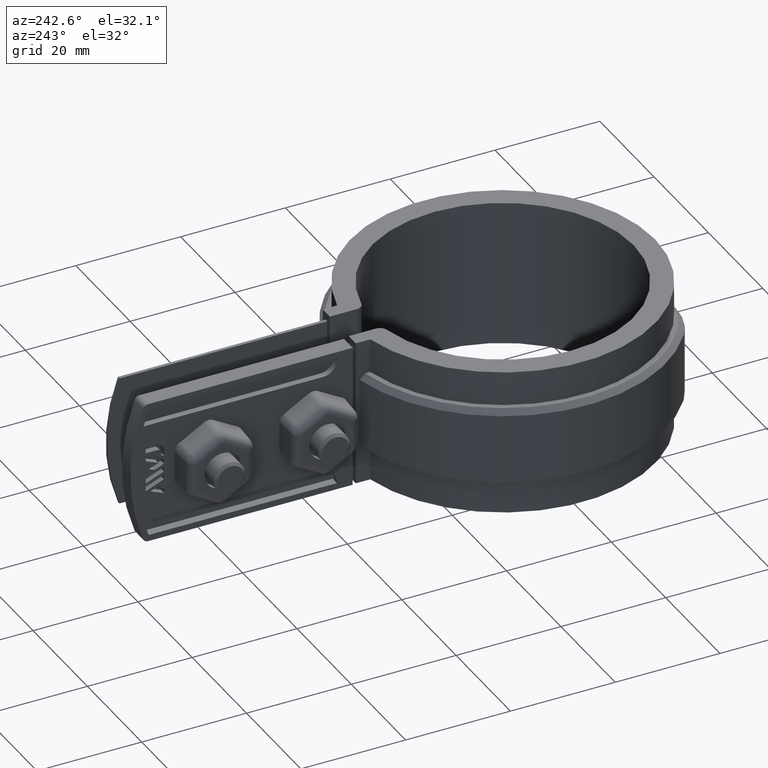
[diagram: clean part render]
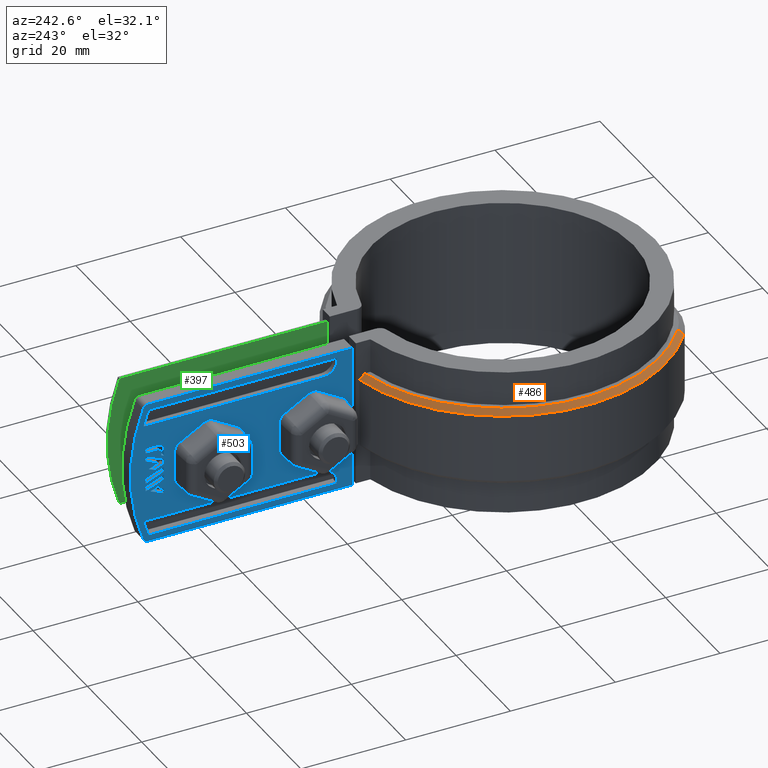
[diagram: same view with three faces highlighted in distinct colors, each labeled with its STEP entity id]
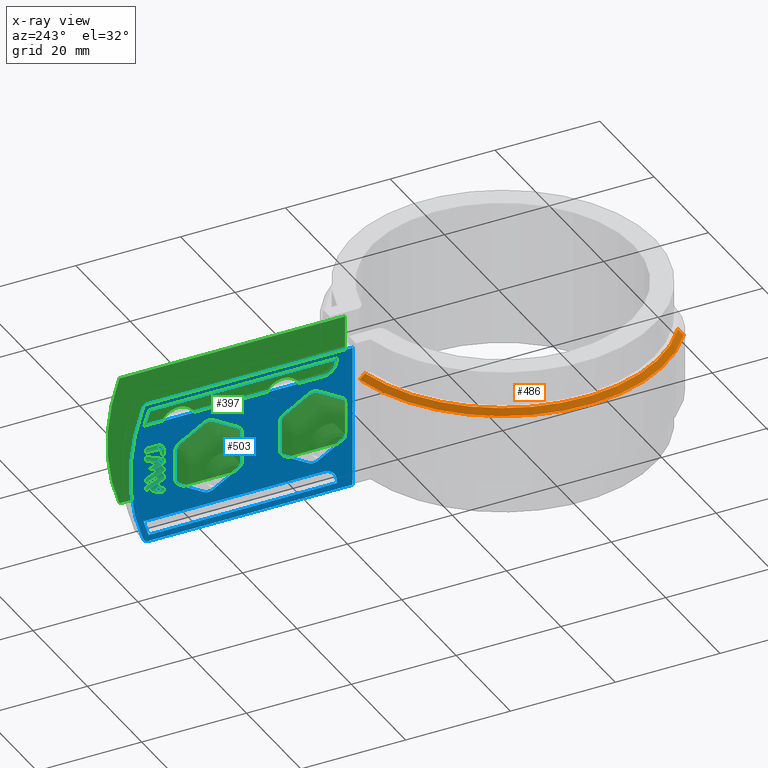
[diagram: x-ray of the same camera — body ghosted, the three highlighted faces saturated]
A machine part, auxiliary view with three faces highlighted in distinct colors.
The next image is the same camera in x-ray (body ghosted, the three faces saturated) — at least one of them is partly hidden behind the body in this view.
Their STEP definitions:

[orange] entity #486 — the highlighted conical surface has half-angle 45 deg.
#486 = ADVANCED_FACE( '', ( #984 ), #985, .T. );
#984 = FACE_OUTER_BOUND( '', #2330, .T. );
#985 = CONICAL_SURFACE( '', #2331, 30.0950000000000, 0.785398163397447 );
#2330 = EDGE_LOOP( '', ( #5050, #5051, #5052, #5053 ) );
#2331 = AXIS2_PLACEMENT_3D( '', #5054, #5055, #5056 );
#5050 = ORIENTED_EDGE( '', *, *, #7542, .F. );
#5051 = ORIENTED_EDGE( '', *, *, #7563, .F. );
#5052 = ORIENTED_EDGE( '', *, *, #7588, .F. );
#5053 = ORIENTED_EDGE( '', *, *, #7568, .F. );
#5054 = CARTESIAN_POINT( '', ( 0.000000000000000, 0.000000000000000, -5.00000000000000 ) );
#5055 = DIRECTION( '', ( 0.000000000000000, 0.000000000000000, -1.00000000000000 ) );
#5056 = DIRECTION( '', ( -1.00000000000000, 0.000000000000000, 0.000000000000000 ) );
#7542 = EDGE_CURVE( '', #8761, #8763, #8764, .T. );
#7563 = EDGE_CURVE( '', #8797, #8761, #8799, .T. );
#7568 = EDGE_CURVE( '', #8763, #8805, #8806, .F. );
#7588 = EDGE_CURVE( '', #8805, #8797, #8832, .T. );
#8761 = VERTEX_POINT( '', #12291 );
#8763 = VERTEX_POINT( '', #12294 );
#8764 = B_SPLINE_CURVE_WITH_KNOTS( '', 3, ( #12295, #12296, #12297, #12298 ), .UNSPECIFIED., .F., .F., ( 4, 4 ), ( 0.000000000000000, 0.00142877906291672 ), .UNSPECIFIED. );
#8797 = VERTEX_POINT( '', #12350 );
#8799 = CIRCLE( '', #12353, 31.0950000000000 );
#8805 = VERTEX_POINT( '', #12359 );
#8806 = CIRCLE( '', #12360, 30.0950000000000 );
#8832 = LINE( '', #12396, #12397 );
#12291 = CARTESIAN_POINT( '', ( -6.10000000000002, 30.4908023016778, -6.00000000000000 ) );
#12294 = CARTESIAN_POINT( '', ( -6.10000000000002, 29.4703075145137, -5.00000000000000 ) );
#12295 = CARTESIAN_POINT( '', ( -6.10000000000002, 30.4908023016778, -6.00000000000000 ) );
#12296 = CARTESIAN_POINT( '', ( -6.10000000000002, 30.1507483085061, -5.66655349484826 ) );
#12297 = CARTESIAN_POINT( '', ( -6.10000000000003, 29.8105871020805, -5.33321628464889 ) );
#12298 = CARTESIAN_POINT( '', ( -6.10000000000003, 29.4703075145137, -5.00000000000000 ) );
#12350 = CARTESIAN_POINT( '', ( -18.6948570380802, -24.8475621606173, -6.00000000000000 ) );
#12353 = AXIS2_PLACEMENT_3D( '', #14271, #14272, #14273 );
#12359 = CARTESIAN_POINT( '', ( -18.0936395742410, -24.0484767076308, -5.00000000000000 ) );
#12360 = AXIS2_PLACEMENT_3D( '', #14286, #14287, #14288 );
#12396 = CARTESIAN_POINT( '', ( -18.0936395742410, -24.0484767076308, -5.00000000000000 ) );
#12397 = VECTOR( '', #14326, 1000.00000000000 );
#14271 = CARTESIAN_POINT( '', ( 0.000000000000000, 0.000000000000000, -6.00000000000000 ) );
#14272 = DIRECTION( '', ( 0.000000000000000, 0.000000000000000, -1.00000000000000 ) );
#14273 = DIRECTION( '', ( -1.00000000000000, 0.000000000000000, 0.000000000000000 ) );
#14286 = CARTESIAN_POINT( '', ( 0.000000000000000, 0.000000000000000, -5.00000000000000 ) );
#14287 = DIRECTION( '', ( 0.000000000000000, 0.000000000000000, -1.00000000000000 ) );
#14288 = DIRECTION( '', ( -1.00000000000000, 0.000000000000000, 0.000000000000000 ) );
#14326 = DIRECTION( '', ( -0.425124945648482, -0.565038742554326, -0.707106781186548 ) );

[blue] entity #503 — the highlighted planar face has unit normal (-1, 0, -0).
#503 = ADVANCED_FACE( '', ( #1018, #1019, #1020, #1021, #1022, #1023, #1024, #1025, #1026, #1027 ), #1028, .T. );
#1018 = FACE_BOUND( '', #2418, .T. );
#1019 = FACE_BOUND( '', #2419, .T. );
#1020 = FACE_BOUND( '', #2420, .T. );
#1021 = FACE_BOUND( '', #2421, .T. );
#1022 = FACE_BOUND( '', #2422, .T. );
#1023 = FACE_OUTER_BOUND( '', #2423, .T. );
#1024 = FACE_BOUND( '', #2424, .T. );
#1025 = FACE_BOUND( '', #2425, .T. );
#1026 = FACE_BOUND( '', #2426, .T. );
#1027 = FACE_BOUND( '', #2427, .T. );
#1028 = PLANE( '', #2428 );
#2418 = EDGE_LOOP( '', ( #5436, #5437, #5438, #5439, #5440 ) );
#2419 = EDGE_LOOP( '', ( #5441, #5442, #5443, #5444 ) );
#2420 = EDGE_LOOP( '', ( #5445, #5446, #5447, #5448, #5449 ) );
#2421 = EDGE_LOOP( '', ( #5450, #5451, #5452, #5453, #5454, #5455, #5456, #5457, #5458, #5459, #5460, #5461 ) );
#2422 = EDGE_LOOP( '', ( #5462, #5463, #5464, #5465, #5466, #5467, #5468, #5469, #5470, #5471, #5472, #5473 ) );
#2423 = EDGE_LOOP( '', ( #5474, #5475, #5476, #5477, #5478, #5479 ) );
#2424 = EDGE_LOOP( '', ( #5480, #5481, #5482, #5483, #5484 ) );
#2425 = EDGE_LOOP( '', ( #5485, #5486, #5487, #5488, #5489, #5490, #5491, #5492, #5493, #5494, #5495, #5496, #5497, #5498, #5499, #5500, #5501, #5502, #5503, #5504, #5505, #5506, #5507, #5508, #5509, #5510, #5511, #5512, #5513, #5514, #5515, #5516, #5517, #5518, #5519, #5520, #5521, #5522, #5523, #5524 ) );
#2426 = EDGE_LOOP( '', ( #5525, #5526, #5527, #5528, #5529, #5530, #5531 ) );
#2427 = EDGE_LOOP( '', ( #5532, #5533, #5534, #5535 ) );
#2428 = AXIS2_PLACEMENT_3D( '', #5536, #5537, #5538 );
#5436 = ORIENTED_EDGE( '', *, *, #7596, .T. );
#5437 = ORIENTED_EDGE( '', *, *, #7597, .T. );
#5438 = ORIENTED_EDGE( '', *, *, #7598, .T. );
#5439 = ORIENTED_EDGE( '', *, *, #7599, .T. );
#5440 = ORIENTED_EDGE( '', *, *, #7600, .T. );
#5441 = ORIENTED_EDGE( '', *, *, #7601, .T. );
#5442 = ORIENTED_EDGE( '', *, *, #7602, .T. );
#5443 = ORIENTED_EDGE( '', *, *, #7603, .T. );
#5444 = ORIENTED_EDGE( '', *, *, #7604, .T. );
#5445 = ORIENTED_EDGE( '', *, *, #7605, .T. );
#5446 = ORIENTED_EDGE( '', *, *, #7606, .F. );
#5447 = ORIENTED_EDGE( '', *, *, #7607, .T. );
#5448 = ORIENTED_EDGE( '', *, *, #7608, .T. );
#5449 = ORIENTED_EDGE( '', *, *, #7609, .T. );
#5450 = ORIENTED_EDGE( '', *, *, #7610, .F. );
#5451 = ORIENTED_EDGE( '', *, *, #7611, .F. );
#5452 = ORIENTED_EDGE( '', *, *, #7612, .F. );
#5453 = ORIENTED_EDGE( '', *, *, #7613, .F. );
#5454 = ORIENTED_EDGE( '', *, *, #7614, .F. );
#5455 = ORIENTED_EDGE( '', *, *, #7615, .F. );
#5456 = ORIENTED_EDGE( '', *, *, #7616, .F. );
#5457 = ORIENTED_EDGE( '', *, *, #7617, .F. );
#5458 = ORIENTED_EDGE( '', *, *, #7618, .F. );
#5459 = ORIENTED_EDGE( '', *, *, #7619, .F. );
#5460 = ORIENTED_EDGE( '', *, *, #7620, .F. );
#5461 = ORIENTED_EDGE( '', *, *, #7621, .F. );
#5462 = ORIENTED_EDGE( '', *, *, #7622, .F. );
#5463 = ORIENTED_EDGE( '', *, *, #7623, .F. );
#5464 = ORIENTED_EDGE( '', *, *, #7624, .F. );
#5465 = ORIENTED_EDGE( '', *, *, #7625, .F. );
#5466 = ORIENTED_EDGE( '', *, *, #7626, .F. );
#5467 = ORIENTED_EDGE( '', *, *, #7627, .F. );
#5468 = ORIENTED_EDGE( '', *, *, #7628, .F. );
#5469 = ORIENTED_EDGE( '', *, *, #7629, .F. );
#5470 = ORIENTED_EDGE( '', *, *, #7630, .F. );
#5471 = ORIENTED_EDGE( '', *, *, #7631, .F. );
#5472 = ORIENTED_EDGE( '', *, *, #7632, .F. );
#5473 = ORIENTED_EDGE( '', *, *, #7633, .F. );
#5474 = ORIENTED_EDGE( '', *, *, #7634, .T. );
#5475 = ORIENTED_EDGE( '', *, *, #7635, .T. );
#5476 = ORIENTED_EDGE( '', *, *, #7636, .T. );
#5477 = ORIENTED_EDGE( '', *, *, #7637, .T. );
#5478 = ORIENTED_EDGE( '', *, *, #7638, .T. );
#5479 = ORIENTED_EDGE( '', *, *, #7639, .T. );
#5480 = ORIENTED_EDGE( '', *, *, #7640, .T. );
#5481 = ORIENTED_EDGE( '', *, *, #7641, .T. );
#5482 = ORIENTED_EDGE( '', *, *, #7642, .T. );
#5483 = ORIENTED_EDGE( '', *, *, #7643, .T. );
#5484 = ORIENTED_EDGE( '', *, *, #7644, .F. );
#5485 = ORIENTED_EDGE( '', *, *, #7645, .T. );
#5486 = ORIENTED_EDGE( '', *, *, #7646, .T. );
#5487 = ORIENTED_EDGE( '', *, *, #7647, .T. );
#5488 = ORIENTED_EDGE( '', *, *, #7648, .T. );
#5489 = ORIENTED_EDGE( '', *, *, #7649, .T. );
#5490 = ORIENTED_EDGE( '', *, *, #7650, .T. );
#5491 = ORIENTED_EDGE( '', *, *, #7651, .T. );
#5492 = ORIENTED_EDGE( '', *, *, #7652, .T. );
#5493 = ORIENTED_EDGE( '', *, *, #7653, .T. );
#5494 = ORIENTED_EDGE( '', *, *, #7654, .T. );
#5495 = ORIENTED_EDGE( '', *, *, #7655, .T. );
#5496 = ORIENTED_EDGE( '', *, *, #7656, .T. );
#5497 = ORIENTED_EDGE( '', *, *, #7657, .T. );
#5498 = ORIENTED_EDGE( '', *, *, #7658, .T. );
#5499 = ORIENTED_EDGE( '', *, *, #7659, .T. );
#5500 = ORIENTED_EDGE( '', *, *, #7660, .T. );
#5501 = ORIENTED_EDGE( '', *, *, #7661, .T. );
#5502 = ORIENTED_EDGE( '', *, *, #7662, .T. );
#5503 = ORIENTED_EDGE( '', *, *, #7663, .T. );
#5504 = ORIENTED_EDGE( '', *, *, #7664, .T. );
#5505 = ORIENTED_EDGE( '', *, *, #7665, .T. );
#5506 = ORIENTED_EDGE( '', *, *, #7666, .T. );
#5507 = ORIENTED_EDGE( '', *, *, #7667, .T. );
#5508 = ORIENTED_EDGE( '', *, *, #7668, .T. );
#5509 = ORIENTED_EDGE( '', *, *, #7669, .T. );
#5510 = ORIENTED_EDGE( '', *, *, #7670, .T. );
#5511 = ORIENTED_EDGE( '', *, *, #7671, .T. );
#5512 = ORIENTED_EDGE( '', *, *, #7672, .T. );
#5513 = ORIENTED_EDGE( '', *, *, #7673, .T. );
#5514 = ORIENTED_EDGE( '', *, *, #7674, .T. );
#5515 = ORIENTED_EDGE( '', *, *, #7675, .T. );
#5516 = ORIENTED_EDGE( '', *, *, #7676, .T. );
#5517 = ORIENTED_EDGE( '', *, *, #7677, .T. );
#5518 = ORIENTED_EDGE( '', *, *, #7678, .T. );
#5519 = ORIENTED_EDGE( '', *, *, #7679, .T. );
#5520 = ORIENTED_EDGE( '', *, *, #7680, .T. );
#5521 = ORIENTED_EDGE( '', *, *, #7681, .T. );
#5522 = ORIENTED_EDGE( '', *, *, #7682, .T. );
#5523 = ORIENTED_EDGE( '', *, *, #7683, .T. );
#5524 = ORIENTED_EDGE( '', *, *, #7684, .T. );
#5525 = ORIENTED_EDGE( '', *, *, #7685, .T. );
#5526 = ORIENTED_EDGE( '', *, *, #7686, .T. );
#5527 = ORIENTED_EDGE( '', *, *, #7687, .T. );
#5528 = ORIENTED_EDGE( '', *, *, #7688, .T. );
#5529 = ORIENTED_EDGE( '', *, *, #7689, .T. );
#5530 = ORIENTED_EDGE( '', *, *, #7690, .T. );
#5531 = ORIENTED_EDGE( '', *, *, #7691, .T. );
#5532 = ORIENTED_EDGE( '', *, *, #7692, .T. );
#5533 = ORIENTED_EDGE( '', *, *, #7693, .T. );
#5534 = ORIENTED_EDGE( '', *, *, #7694, .T. );
#5535 = ORIENTED_EDGE( '', *, *, #7695, .T. );
#5536 = CARTESIAN_POINT( '', ( -6.69999999999985, 38.1151297143986, -12.4999999999978 ) );
#5537 = DIRECTION( '', ( -1.00000000000000, 6.81102793110844E-016, -3.55799675438525E-016 ) );
#5538 = DIRECTION( '', ( 6.81102793110844E-016, 1.00000000000000, 1.97370347599982E-018 ) );
#7596 = EDGE_CURVE( '', #8840, #8841, #8842, .T. );
#7597 = EDGE_CURVE( '', #8841, #8843, #8844, .T. );
#7598 = EDGE_CURVE( '', #8843, #8845, #8846, .T. );
#7599 = EDGE_CURVE( '', #8845, #8847, #8848, .T. );
#7600 = EDGE_CURVE( '', #8847, #8840, #8849, .T. );
#7601 = EDGE_CURVE( '', #8850, #8851, #8852, .T. );
#7602 = EDGE_CURVE( '', #8851, #8853, #8854, .T. );
#7603 = EDGE_CURVE( '', #8853, #8855, #8856, .T. );
#7604 = EDGE_CURVE( '', #8855, #8850, #8857, .T. );
#7605 = EDGE_CURVE( '', #8858, #8859, #8860, .F. );
#7606 = EDGE_CURVE( '', #8861, #8859, #8862, .T. );
#7607 = EDGE_CURVE( '', #8861, #8863, #8864, .T. );
#7608 = EDGE_CURVE( '', #8863, #8865, #8866, .T. );
#7609 = EDGE_CURVE( '', #8865, #8858, #8867, .T. );
#7610 = EDGE_CURVE( '', #8868, #8869, #8870, .F. );
#7611 = EDGE_CURVE( '', #8871, #8868, #8872, .T. );
#7612 = EDGE_CURVE( '', #8873, #8871, #8874, .F. );
#7613 = EDGE_CURVE( '', #8875, #8873, #8876, .T. );
#7614 = EDGE_CURVE( '', #8877, #8875, #8878, .F. );
#7615 = EDGE_CURVE( '', #8879, #8877, #8880, .T. );
#7616 = EDGE_CURVE( '', #8881, #8879, #8882, .F. );
#7617 = EDGE_CURVE( '', #8883, #8881, #8884, .T. );
#7618 = EDGE_CURVE( '', #8885, #8883, #8886, .F. );
#7619 = EDGE_CURVE( '', #8887, #8885, #8888, .T. );
#7620 = EDGE_CURVE( '', #8889, #8887, #8890, .F. );
#7621 = EDGE_CURVE( '', #8869, #8889, #8891, .T. );
#7622 = EDGE_CURVE( '', #8892, #8893, #8894, .F. );
#7623 = EDGE_CURVE( '', #8895, #8892, #8896, .T. );
#7624 = EDGE_CURVE( '', #8897, #8895, #8898, .F. );
#7625 = EDGE_CURVE( '', #8899, #8897, #8900, .T. );
#7626 = EDGE_CURVE( '', #8901, #8899, #8902, .F. );
#7627 = EDGE_CURVE( '', #8903, #8901, #8904, .T. );
#7628 = EDGE_CURVE( '', #8905, #8903, #8906, .F. );
#7629 = EDGE_CURVE( '', #8907, #8905, #8908, .T. );
#7630 = EDGE_CURVE( '', #8909, #8907, #8910, .F. );
#7631 = EDGE_CURVE( '', #8911, #8909, #8912, .T. );
#7632 = EDGE_CURVE( '', #8913, #8911, #8914, .F. );
#7633 = EDGE_CURVE( '', #8893, #8913, #8915, .T. );
#7634 = EDGE_CURVE( '', #8916, #8917, #8918, .T. );
#7635 = EDGE_CURVE( '', #8917, #8919, #8920, .T. );
#7636 = EDGE_CURVE( '', #8919, #8921, #8922, .T. );
#7637 = EDGE_CURVE( '', #8921, #8923, #8924, .T. );
#7638 = EDGE_CURVE( '', #8923, #8925, #8926, .T. );
#7639 = EDGE_CURVE( '', #8925, #8916, #8927, .T. );
#7640 = EDGE_CURVE( '', #8928, #8929, #8930, .F. );
#7641 = EDGE_CURVE( '', #8929, #8931, #8932, .T. );
#7642 = EDGE_CURVE( '', #8931, #8933, #8934, .T. );
#7643 = EDGE_CURVE( '', #8933, #8935, #8936, .T. );
#7644 = EDGE_CURVE( '', #8928, #8935, #8937, .T. );
#7645 = EDGE_CURVE( '', #8938, #8939, #8940, .T. );
#7646 = EDGE_CURVE( '', #8939, #8941, #8942, .T. );
#7647 = EDGE_CURVE( '', #8941, #8943, #8944, .T. );
#7648 = EDGE_CURVE( '', #8943, #8945, #8946, .T. );
#7649 = EDGE_CURVE( '', #8945, #8947, #8948, .T. );
#7650 = EDGE_CURVE( '', #8947, #8949, #8950, .T. );
#7651 = EDGE_CURVE( '', #8949, #8951, #8952, .T. );
#7652 = EDGE_CURVE( '', #8951, #8953, #8954, .T. );
#7653 = EDGE_CURVE( '', #8953, #8955, #8956, .T. );
#7654 = EDGE_CURVE( '', #8955, #8957, #8958, .T. );
#7655 = EDGE_CURVE( '', #8957, #8959, #8960, .T. );
#7656 = EDGE_CURVE( '', #8959, #8961, #8962, .T. );
#7657 = EDGE_CURVE( '', #8961, #8963, #8964, .T. );
#7658 = EDGE_CURVE( '', #8963, #8965, #8966, .T. );
#7659 = EDGE_CURVE( '', #8965, #8967, #8968, .T. );
#7660 = EDGE_CURVE( '', #8967, #8969, #8970, .T. );
#7661 = EDGE_CURVE( '', #8969, #8971, #8972, .T. );
#7662 = EDGE_CURVE( '', #8971, #8973, #8974, .T. );
#7663 = EDGE_CURVE( '', #8973, #8975, #8976, .T. );
#7664 = EDGE_CURVE( '', #8975, #8977, #8978, .T. );
#7665 = EDGE_CURVE( '', #8977, #8979, #8980, .T. );
#7666 = EDGE_CURVE( '', #8979, #8981, #8982, .T. );
#7667 = EDGE_CURVE( '', #8981, #8983, #8984, .T. );
#7668 = EDGE_CURVE( '', #8983, #8985, #8986, .T. );
#7669 = EDGE_CURVE( '', #8985, #8987, #8988, .T. );
#7670 = EDGE_CURVE( '', #8987, #8989, #8990, .T. );
#7671 = EDGE_CURVE( '', #8989, #8991, #8992, .T. );
#7672 = EDGE_CURVE( '', #8991, #8993, #8994, .T. );
#7673 = EDGE_CURVE( '', #8993, #8995, #8996, .T. );
#7674 = EDGE_CURVE( '', #8995, #8997, #8998, .T. );
#7675 = EDGE_CURVE( '', #8997, #8999, #9000, .T. );
#7676 = EDGE_CURVE( '', #8999, #9001, #9002, .T. );
#7677 = EDGE_CURVE( '', #9001, #9003, #9004, .T. );
#7678 = EDGE_CURVE( '', #9003, #9005, #9006, .T. );
#7679 = EDGE_CURVE( '', #9005, #9007, #9008, .T. );
#7680 = EDGE_CURVE( '', #9007, #9009, #9010, .T. );
#7681 = EDGE_CURVE( '', #9009, #9011, #9012, .T. );
#7682 = EDGE_CURVE( '', #9011, #9013, #9014, .T. );
#7683 = EDGE_CURVE( '', #9013, #9015, #9016, .T. );
#7684 = EDGE_CURVE( '', #9015, #8938, #9017, .F. );
#7685 = EDGE_CURVE( '', #9018, #9019, #9020, .T. );
#7686 = EDGE_CURVE( '', #9019, #9021, #9022, .T. );
#7687 = EDGE_CURVE( '', #9021, #9023, #9024, .T. );
#7688 = EDGE_CURVE( '', #9023, #9025, #9026, .T. );
#7689 = EDGE_CURVE( '', #9025, #9027, #9028, .T. );
#7690 = EDGE_CURVE( '', #9027, #9029, #9030, .T. );
#7691 = EDGE_CURVE( '', #9029, #9018, #9031, .T. );
#7692 = EDGE_CURVE( '', #9032, #9033, #9034, .T. );
#7693 = EDGE_CURVE( '', #9033, #9035, #9036, .T. );
#7694 = EDGE_CURVE( '', #9035, #9037, #9038, .T. );
#7695 = EDGE_CURVE( '', #9037, #9032, #9039, .T. );
#8840 = VERTEX_POINT( '', #12434 );
#8841 = VERTEX_POINT( '', #12435 );
#8842 = LINE( '', #12436, #12437 );
#8843 = VERTEX_POINT( '', #12438 );
#8844 = LINE( '', #12439, #12440 );
#8845 = VERTEX_POINT( '', #12441 );
#8846 = LINE( '', #12442, #12443 );
#8847 = VERTEX_POINT( '', #12444 );
#8848 = LINE( '', #12445, #12446 );
#8849 = LINE( '', #12447, #12448 );
#8850 = VERTEX_POINT( '', #12449 );
#8851 = VERTEX_POINT( '', #12450 );
#8852 = LINE( '', #12451, #12452 );
#8853 = VERTEX_POINT( '', #12453 );
#8854 = LINE( '', #12454, #12455 );
#8855 = VERTEX_POINT( '', #12456 );
#8856 = LINE( '', #12457, #12458 );
#8857 = LINE( '', #12459, #12460 );
#8858 = VERTEX_POINT( '', #12461 );
#8859 = VERTEX_POINT( '', #12462 );
#8860 = CIRCLE( '', #12463, 35.1999999999923 );
#8861 = VERTEX_POINT( '', #12464 );
#8862 = LINE( '', #12465, #12466 );
#8863 = VERTEX_POINT( '', #12467 );
#8864 = LINE( '', #12468, #12469 );
#8865 = VERTEX_POINT( '', #12470 );
#8866 = CIRCLE( '', #12471, 2.49999999999945 );
#8867 = LINE( '', #12472, #12473 );
#8868 = VERTEX_POINT( '', #12474 );
#8869 = VERTEX_POINT( '', #12475 );
#8870 = LINE( '', #12476, #12477 );
#8871 = VERTEX_POINT( '', #12478 );
#8872 = CIRCLE( '', #12479, 1.77252045227142 );
#8873 = VERTEX_POINT( '', #12480 );
#8874 = LINE( '', #12481, #12482 );
#8875 = VERTEX_POINT( '', #12483 );
#8876 = CIRCLE( '', #12484, 1.77252045227142 );
#8877 = VERTEX_POINT( '', #12485 );
#8878 = LINE( '', #12486, #12487 );
#8879 = VERTEX_POINT( '', #12488 );
#8880 = CIRCLE( '', #12489, 1.77252045227143 );
#8881 = VERTEX_POINT( '', #12490 );
#8882 = LINE( '', #12491, #12492 );
#8883 = VERTEX_POINT( '', #12493 );
#8884 = CIRCLE( '', #12494, 1.77252045227143 );
#8885 = VERTEX_POINT( '', #12495 );
#8886 = LINE( '', #12496, #12497 );
#8887 = VERTEX_POINT( '', #12498 );
#8888 = CIRCLE( '', #12499, 1.77252045227142 );
#8889 = VERTEX_POINT( '', #12500 );
#8890 = LINE( '', #12501, #12502 );
#8891 = CIRCLE( '', #12503, 1.77252045227144 );
#8892 = VERTEX_POINT( '', #12504 );
#8893 = VERTEX_POINT( '', #12505 );
#8894 = LINE( '', #12506, #12507 );
#8895 = VERTEX_POINT( '', #12508 );
#8896 = CIRCLE( '', #12509, 1.77252045227156 );
#8897 = VERTEX_POINT( '', #12510 );
#8898 = LINE( '', #12511, #12512 );
#8899 = VERTEX_POINT( '', #12513 );
#8900 = CIRCLE( '', #12514, 1.77252045227156 );
#8901 = VERTEX_POINT( '', #12515 );
#8902 = LINE( '', #12516, #12517 );
#8903 = VERTEX_POINT( '', #12518 );
#8904 = CIRCLE( '', #12519, 1.77252045227156 );
#8905 = VERTEX_POINT( '', #12520 );
#8906 = LINE( '', #12521, #12522 );
#8907 = VERTEX_POINT( '', #12523 );
#8908 = CIRCLE( '', #12524, 1.77252045227156 );
#8909 = VERTEX_POINT( '', #12525 );
#8910 = LINE( '', #12526, #12527 );
#8911 = VERTEX_POINT( '', #12528 );
#8912 = CIRCLE( '', #12529, 1.77252045227155 );
#8913 = VERTEX_POINT( '', #12530 );
#8914 = LINE( '', #12531, #12532 );
#8915 = CIRCLE( '', #12533, 1.77252045227156 );
#8916 = VERTEX_POINT( '', #12534 );
#8917 = VERTEX_POINT( '', #12535 );
#8918 = CIRCLE( '', #12536, 36.3999999999947 );
#8919 = VERTEX_POINT( '', #12537 );
#8920 = CIRCLE( '', #12538, 0.999999999999783 );
#8921 = VERTEX_POINT( '', #12539 );
#8922 = LINE( '', #12540, #12541 );
#8923 = VERTEX_POINT( '', #12542 );
#8924 = LINE( '', #12543, #12544 );
#8925 = VERTEX_POINT( '', #12545 );
#8926 = LINE( '', #12546, #12547 );
#8927 = CIRCLE( '', #12548, 0.999999999999783 );
#8928 = VERTEX_POINT( '', #12549 );
#8929 = VERTEX_POINT( '', #12550 );
#8930 = CIRCLE( '', #12551, 35.1999999999923 );
#8931 = VERTEX_POINT( '', #12552 );
#8932 = LINE( '', #12553, #12554 );
#8933 = VERTEX_POINT( '', #12555 );
#8934 = CIRCLE( '', #12556, 2.49999999999964 );
#8935 = VERTEX_POINT( '', #12557 );
#8936 = LINE( '', #12558, #12559 );
#8937 = LINE( '', #12560, #12561 );
#8938 = VERTEX_POINT( '', #12562 );
#8939 = VERTEX_POINT( '', #12563 );
#8940 = LINE( '', #12564, #12565 );
#8941 = VERTEX_POINT( '', #12566 );
#8942 = LINE( '', #12567, #12568 );
#8943 = VERTEX_POINT( '', #12569 );
#8944 = LINE( '', #12570, #12571 );
#8945 = VERTEX_POINT( '', #12572 );
#8946 = LINE( '', #12573, #12574 );
#8947 = VERTEX_POINT( '', #12575 );
#8948 = LINE( '', #12576, #12577 );
#8949 = VERTEX_POINT( '', #12578 );
#8950 = LINE( '', #12579, #12580 );
#8951 = VERTEX_POINT( '', #12581 );
#8952 = LINE( '', #12582, #12583 );
#8953 = VERTEX_POINT( '', #12584 );
#8954 = LINE( '', #12585, #12586 );
#8955 = VERTEX_POINT( '', #12587 );
#8956 = LINE( '', #12588, #12589 );
#8957 = VERTEX_POINT( '', #12590 );
#8958 = LINE( '', #12591, #12592 );
#8959 = VERTEX_POINT( '', #12593 );
#8960 = LINE( '', #12594, #12595 );
#8961 = VERTEX_POINT( '', #12596 );
#8962 = LINE( '', #12597, #12598 );
#8963 = VERTEX_POINT( '', #12599 );
#8964 = LINE( '', #12600, #12601 );
#8965 = VERTEX_POINT( '', #12602 );
#8966 = LINE( '', #12603, #12604 );
#8967 = VERTEX_POINT( '', #12605 );
#8968 = LINE( '', #12606, #12607 );
#8969 = VERTEX_POINT( '', #12608 );
#8970 = LINE( '', #12609, #12610 );
#8971 = VERTEX_POINT( '', #12611 );
#8972 = LINE( '', #12612, #12613 );
#8973 = VERTEX_POINT( '', #12614 );
#8974 = LINE( '', #12615, #12616 );
#8975 = VERTEX_POINT( '', #12617 );
#8976 = LINE( '', #12618, #12619 );
#8977 = VERTEX_POINT( '', #12620 );
#8978 = LINE( '', #12621, #12622 );
#8979 = VERTEX_POINT( '', #12623 );
#8980 = LINE( '', #12624, #12625 );
#8981 = VERTEX_POINT( '', #12626 );
#8982 = LINE( '', #12627, #12628 );
#8983 = VERTEX_POINT( '', #12629 );
#8984 = LINE( '', #12630, #12631 );
#8985 = VERTEX_POINT( '', #12632 );
#8986 = LINE( '', #12633, #12634 );
#8987 = VERTEX_POINT( '', #12635 );
#8988 = LINE( '', #12636, #12637 );
#8989 = VERTEX_POINT( '', #12638 );
#8990 = LINE( '', #12639, #12640 );
#8991 = VERTEX_POINT( '', #12641 );
#8992 = LINE( '', #12642, #12643 );
#8993 = VERTEX_POINT( '', #12644 );
#8994 = LINE( '', #12645, #12646 );
#8995 = VERTEX_POINT( '', #12647 );
#8996 = LINE( '', #12648, #12649 );
#8997 = VERTEX_POINT( '', #12650 );
#8998 = LINE( '', #12651, #12652 );
#8999 = VERTEX_POINT( '', #12653 );
#9000 = LINE( '', #12654, #12655 );
#9001 = VERTEX_POINT( '', #12656 );
#9002 = LINE( '', #12657, #12658 );
#9003 = VERTEX_POINT( '', #12659 );
#9004 = LINE( '', #12660, #12661 );
#9005 = VERTEX_POINT( '', #12662 );
#9006 = LINE( '', #12663, #12664 );
#9007 = VERTEX_POINT( '', #12665 );
#9008 = LINE( '', #12666, #12667 );
#9009 = VERTEX_POINT( '', #12668 );
#9010 = LINE( '', #12669, #12670 );
#9011 = VERTEX_POINT( '', #12671 );
#9012 = LINE( '', #12672, #12673 );
#9013 = VERTEX_POINT( '', #12674 );
#9014 = LINE( '', #12675, #12676 );
#9015 = VERTEX_POINT( '', #12677 );
#9016 = LINE( '', #12678, #12679 );
#9017 = CIRCLE( '', #12680, 1.16712912069168 );
#9018 = VERTEX_POINT( '', #12681 );
#9019 = VERTEX_POINT( '', #12682 );
#9020 = LINE( '', #12683, #12684 );
#9021 = VERTEX_POINT( '', #12685 );
#9022 = LINE( '', #12686, #12687 );
#9023 = VERTEX_POINT( '', #12688 );
#9024 = LINE( '', #12689, #12690 );
#9025 = VERTEX_POINT( '', #12691 );
#9026 = LINE( '', #12692, #12693 );
#9027 = VERTEX_POINT( '', #12694 );
#9028 = LINE( '', #12695, #12696 );
#9029 = VERTEX_POINT( '', #12697 );
#9030 = LINE( '', #12698, #12699 );
#9031 = LINE( '', #12700, #12701 );
#9032 = VERTEX_POINT( '', #12702 );
#9033 = VERTEX_POINT( '', #12703 );
#9034 = LINE( '', #12704, #12705 );
#9035 = VERTEX_POINT( '', #12706 );
#9036 = LINE( '', #12707, #12708 );
#9037 = VERTEX_POINT( '', #12709 );
#9038 = LINE( '', #12710, #12711 );
#9039 = LINE( '', #12712, #12713 );
#12434 = CARTESIAN_POINT( '', ( -6.69999999999982, 68.9268277311666, -15.6427309999974 ) );
#12435 = CARTESIAN_POINT( '', ( -6.69999999999982, 68.9268277311666, -16.2049013519973 ) );
#12436 = CARTESIAN_POINT( '', ( -6.69999999999983, 68.9268277311666, -12.4999999999978 ) );
#12437 = VECTOR( '', #14332, 1000.00000000000 );
#12438 = CARTESIAN_POINT( '', ( -6.69999999999982, 68.1188218271667, -16.5315944439972 ) );
#12439 = CARTESIAN_POINT( '', ( -6.69999999999984, 43.7318415990263, -26.3917426630064 ) );
#12440 = VECTOR( '', #14333, 999.999999999938 );
#12441 = CARTESIAN_POINT( '', ( -6.69999999999982, 68.1188218271667, -17.4353519199971 ) );
#12442 = CARTESIAN_POINT( '', ( -6.69999999999983, 68.1188218271667, -12.4999999999978 ) );
#12443 = VECTOR( '', #14334, 1000.00000000000 );
#12444 = CARTESIAN_POINT( '', ( -6.69999999999982, 70.7418589411662, -16.3757128079972 ) );
#12445 = CARTESIAN_POINT( '', ( -6.69999999999984, 44.0386499851671, -27.1631181690055 ) );
#12446 = VECTOR( '', #14335, 999.999999999938 );
#12447 = CARTESIAN_POINT( '', ( -6.69999999999985, 41.3443083718725, -4.50381239750599 ) );
#12448 = VECTOR( '', #14336, 999.999999999938 );
#12449 = CARTESIAN_POINT( '', ( -6.69999999999982, 71.6172606511660, -14.5449628859975 ) );
#12450 = CARTESIAN_POINT( '', ( -6.69999999999982, 71.6172606511660, -13.6409432239976 ) );
#12451 = CARTESIAN_POINT( '', ( -6.69999999999982, 71.6172606511660, -12.4999999999978 ) );
#12452 = VECTOR( '', #14337, 1000.00000000000 );
#12453 = CARTESIAN_POINT( '', ( -6.69999999999983, 68.1188218271667, -12.2273304499978 ) );
#12454 = CARTESIAN_POINT( '', ( -6.69999999999985, 42.4210413936057, -1.84363860576055 ) );
#12455 = VECTOR( '', #14338, 999.999999999938 );
#12456 = CARTESIAN_POINT( '', ( -6.69999999999983, 68.1188218271667, -13.1313508899977 ) );
#12457 = CARTESIAN_POINT( '', ( -6.69999999999983, 68.1188218271667, -12.4999999999978 ) );
#12458 = VECTOR( '', #14339, 1000.00000000000 );
#12459 = CARTESIAN_POINT( '', ( -6.69999999999985, 42.1070205664311, -2.62077856056534 ) );
#12460 = VECTOR( '', #14340, 999.999999999938 );
#12461 = CARTESIAN_POINT( '', ( -6.69999999999983, 72.0089344580313, -2.99999999999918 ) );
#12462 = CARTESIAN_POINT( '', ( -6.69999999999983, 71.0209042836065, 3.77818806592569E-013 ) );
#12463 = AXIS2_PLACEMENT_3D( '', #14341, #14342, #14343 );
#12464 = CARTESIAN_POINT( '', ( -6.69999999999985, 35.1151297143993, 3.88142551992639E-013 ) );
#12465 = CARTESIAN_POINT( '', ( -6.69999999999985, 32.1151297143999, 3.90253276782033E-013 ) );
#12466 = VECTOR( '', #14344, 999.999999999927 );
#12467 = CARTESIAN_POINT( '', ( -6.69999999999985, 35.1151297143993, -0.499999999999538 ) );
#12468 = CARTESIAN_POINT( '', ( -6.69999999999985, 35.1151297143993, 1.20000000000021 ) );
#12469 = VECTOR( '', #14345, 1000.00000000000 );
#12470 = CARTESIAN_POINT( '', ( -6.69999999999985, 37.6151297143987, -2.99999999999918 ) );
#12471 = AXIS2_PLACEMENT_3D( '', #14346, #14347, #14348 );
#12472 = CARTESIAN_POINT( '', ( -6.69999999999985, 37.6151297143987, -2.99999999999918 ) );
#12473 = VECTOR( '', #14349, 999.999999999927 );
#12474 = CARTESIAN_POINT( '', ( -6.69999999999983, 66.0876501666643, -9.78645373480695 ) );
#12475 = CARTESIAN_POINT( '', ( -6.69999999999983, 66.0876501666643, -15.2135462651887 ) );
#12476 = CARTESIAN_POINT( '', ( -6.69999999999983, 66.0876501666643, -15.2135462651886 ) );
#12477 = VECTOR( '', #14350, 1000.00000000000 );
#12478 = CARTESIAN_POINT( '', ( -6.69999999999983, 65.2013899405286, -8.25140599441229 ) );
#12479 = AXIS2_PLACEMENT_3D( '', #14351, #14352, #14353 );
#12480 = CARTESIAN_POINT( '', ( -6.69999999999984, 60.5013899405296, -5.53785972922146 ) );
#12481 = CARTESIAN_POINT( '', ( -6.69999999999983, 67.5513899405281, -9.60817912700771 ) );
#12482 = VECTOR( '', #14354, 999.999999999945 );
#12483 = CARTESIAN_POINT( '', ( -6.69999999999984, 58.7288694882582, -5.53785972922145 ) );
#12484 = AXIS2_PLACEMENT_3D( '', #14355, #14356, #14357 );
#12485 = CARTESIAN_POINT( '', ( -6.69999999999984, 54.0288694882592, -8.25140599441229 ) );
#12486 = CARTESIAN_POINT( '', ( -6.69999999999984, 58.7288694882582, -5.53785972922145 ) );
#12487 = VECTOR( '', #14358, 999.999999999946 );
#12488 = CARTESIAN_POINT( '', ( -6.69999999999984, 53.1426092621235, -9.78645373480695 ) );
#12489 = AXIS2_PLACEMENT_3D( '', #14359, #14360, #14361 );
#12490 = CARTESIAN_POINT( '', ( -6.69999999999984, 53.1426092621235, -15.2135462651886 ) );
#12491 = CARTESIAN_POINT( '', ( -6.69999999999984, 53.1426092621235, -15.2135462651886 ) );
#12492 = VECTOR( '', #14362, 1000.00000000000 );
#12493 = CARTESIAN_POINT( '', ( -6.69999999999984, 54.0288694882592, -16.7485940055833 ) );
#12494 = AXIS2_PLACEMENT_3D( '', #14363, #14364, #14365 );
#12495 = CARTESIAN_POINT( '', ( -6.69999999999983, 58.7288694882582, -19.4621402707742 ) );
#12496 = CARTESIAN_POINT( '', ( -6.69999999999983, 61.0788694882577, -20.8189134033696 ) );
#12497 = VECTOR( '', #14366, 999.999999999945 );
#12498 = CARTESIAN_POINT( '', ( -6.69999999999983, 60.5013899405296, -19.4621402707741 ) );
#12499 = AXIS2_PLACEMENT_3D( '', #14367, #14368, #14369 );
#12500 = CARTESIAN_POINT( '', ( -6.69999999999983, 65.2013899405286, -16.7485940055833 ) );
#12501 = CARTESIAN_POINT( '', ( -6.69999999999983, 65.2013899405286, -16.7485940055833 ) );
#12502 = VECTOR( '', #14370, 999.999999999946 );
#12503 = AXIS2_PLACEMENT_3D( '', #14371, #14372, #14373 );
#12504 = CARTESIAN_POINT( '', ( -6.69999999999984, 46.0876501666686, -9.78645373480695 ) );
#12505 = CARTESIAN_POINT( '', ( -6.69999999999984, 46.0876501666686, -15.2135462651886 ) );
#12506 = CARTESIAN_POINT( '', ( -6.69999999999984, 46.0876501666686, -15.2135462651886 ) );
#12507 = VECTOR( '', #14374, 1000.00000000000 );
#12508 = CARTESIAN_POINT( '', ( -6.69999999999984, 45.2013899405329, -8.25140599441230 ) );
#12509 = AXIS2_PLACEMENT_3D( '', #14375, #14376, #14377 );
#12510 = CARTESIAN_POINT( '', ( -6.69999999999985, 40.5013899405339, -5.53785972922145 ) );
#12511 = CARTESIAN_POINT( '', ( -6.69999999999984, 47.5513899405324, -9.60817912700772 ) );
#12512 = VECTOR( '', #14378, 999.999999999945 );
#12513 = CARTESIAN_POINT( '', ( -6.69999999999985, 38.7288694882625, -5.53785972922145 ) );
#12514 = AXIS2_PLACEMENT_3D( '', #14379, #14380, #14381 );
#12515 = CARTESIAN_POINT( '', ( -6.69999999999985, 34.0288694882635, -8.25140599441230 ) );
#12516 = CARTESIAN_POINT( '', ( -6.69999999999985, 38.7288694882625, -5.53785972922145 ) );
#12517 = VECTOR( '', #14382, 999.999999999946 );
#12518 = CARTESIAN_POINT( '', ( -6.69999999999985, 33.1426092621278, -9.78645373480695 ) );
#12519 = AXIS2_PLACEMENT_3D( '', #14383, #14384, #14385 );
#12520 = CARTESIAN_POINT( '', ( -6.69999999999985, 33.1426092621278, -15.2135462651886 ) );
#12521 = CARTESIAN_POINT( '', ( -6.69999999999985, 33.1426092621278, -15.2135462651886 ) );
#12522 = VECTOR( '', #14386, 1000.00000000000 );
#12523 = CARTESIAN_POINT( '', ( -6.69999999999985, 34.0288694882635, -16.7485940055833 ) );
#12524 = AXIS2_PLACEMENT_3D( '', #14387, #14388, #14389 );
#12525 = CARTESIAN_POINT( '', ( -6.69999999999984, 38.7288694882625, -19.4621402707742 ) );
#12526 = CARTESIAN_POINT( '', ( -6.69999999999984, 41.0788694882620, -20.8189134033696 ) );
#12527 = VECTOR( '', #14390, 999.999999999946 );
#12528 = CARTESIAN_POINT( '', ( -6.69999999999984, 40.5013899405339, -19.4621402707741 ) );
#12529 = AXIS2_PLACEMENT_3D( '', #14391, #14392, #14393 );
#12530 = CARTESIAN_POINT( '', ( -6.69999999999984, 45.2013899405329, -16.7485940055833 ) );
#12531 = CARTESIAN_POINT( '', ( -6.69999999999984, 45.2013899405329, -16.7485940055833 ) );
#12532 = VECTOR( '', #14394, 999.999999999946 );
#12533 = AXIS2_PLACEMENT_3D( '', #14395, #14396, #14397 );
#12534 = CARTESIAN_POINT( '', ( -6.69999999999983, 72.0920169171917, 0.558757062147189 ) );
#12535 = CARTESIAN_POINT( '', ( -6.69999999999982, 72.0920169171917, -25.5587570621428 ) );
#12536 = AXIS2_PLACEMENT_3D( '', #14398, #14399, #14400 );
#12537 = CARTESIAN_POINT( '', ( -6.69999999999982, 71.1585859500820, -26.1999999999958 ) );
#12538 = AXIS2_PLACEMENT_3D( '', #14401, #14402, #14403 );
#12539 = CARTESIAN_POINT( '', ( -6.69999999999985, 32.1151297143999, -26.1999999999958 ) );
#12540 = CARTESIAN_POINT( '', ( -6.69999999999984, 35.1151297143993, -26.1999999999958 ) );
#12541 = VECTOR( '', #14404, 999.999999999927 );
#12542 = CARTESIAN_POINT( '', ( -6.69999999999985, 32.1151297143999, 1.20000000000021 ) );
#12543 = CARTESIAN_POINT( '', ( -6.69999999999985, 32.1151297143999, -26.1999999999958 ) );
#12544 = VECTOR( '', #14405, 1000.00000000000 );
#12545 = CARTESIAN_POINT( '', ( -6.69999999999983, 71.1585859500820, 1.20000000000021 ) );
#12546 = CARTESIAN_POINT( '', ( -6.69999999999986, 32.1151297143999, 1.20000000000021 ) );
#12547 = VECTOR( '', #14406, 999.999999999927 );
#12548 = AXIS2_PLACEMENT_3D( '', #14407, #14408, #14409 );
#12549 = CARTESIAN_POINT( '', ( -6.69999999999982, 71.0209042836065, -24.9999999999960 ) );
#12550 = CARTESIAN_POINT( '', ( -6.69999999999982, 72.0089344580313, -21.9999999999964 ) );
#12551 = AXIS2_PLACEMENT_3D( '', #14410, #14411, #14412 );
#12552 = CARTESIAN_POINT( '', ( -6.69999999999984, 37.6151297143987, -21.9999999999964 ) );
#12553 = CARTESIAN_POINT( '', ( -6.69999999999982, 72.8390407844304, -21.9999999999964 ) );
#12554 = VECTOR( '', #14413, 999.999999999927 );
#12555 = CARTESIAN_POINT( '', ( -6.69999999999984, 35.1151297143993, -24.4999999999961 ) );
#12556 = AXIS2_PLACEMENT_3D( '', #14414, #14415, #14416 );
#12557 = CARTESIAN_POINT( '', ( -6.69999999999984, 35.1151297143992, -24.9999999999960 ) );
#12558 = CARTESIAN_POINT( '', ( -6.69999999999984, 35.1151297143992, -24.4999999999961 ) );
#12559 = VECTOR( '', #14417, 1000.00000000000 );
#12560 = CARTESIAN_POINT( '', ( -6.69999999999982, 70.8068717909466, -24.9999999999960 ) );
#12561 = VECTOR( '', #14418, 999.999999999927 );
#12562 = CARTESIAN_POINT( '', ( -6.69999999999983, 68.1188218343053, -8.74297971174699 ) );
#12563 = CARTESIAN_POINT( '', ( -6.69999999999983, 68.1188218271667, -9.97073444799817 ) );
#12564 = CARTESIAN_POINT( '', ( -6.69999999999983, 68.1188218124607, -12.5000001744493 ) );
#12565 = VECTOR( '', #14419, 1000.00000000000 );
#12566 = CARTESIAN_POINT( '', ( -6.69999999999983, 68.6275614731667, -9.76519073799820 ) );
#12567 = CARTESIAN_POINT( '', ( -6.69999999999984, 41.4470486439684, -20.7468067581820 ) );
#12568 = VECTOR( '', #14420, 999.999999999938 );
#12569 = CARTESIAN_POINT( '', ( -6.69999999999983, 68.6275614731667, -9.26826424399827 ) );
#12570 = CARTESIAN_POINT( '', ( -6.69999999999983, 68.6275614731667, -12.4999999999978 ) );
#12571 = VECTOR( '', #14421, 1000.00000000000 );
#12572 = CARTESIAN_POINT( '', ( -6.69999999999983, 68.6282585611666, -9.23547076599828 ) );
#12573 = CARTESIAN_POINT( '', ( -6.69999999999983, 68.5451147803871, -13.1468474441660 ) );
#12574 = VECTOR( '', #14422, 1000.00000000000 );
#12575 = CARTESIAN_POINT( '', ( -6.69999999999983, 68.6303420451666, -9.20269440399829 ) );
#12576 = CARTESIAN_POINT( '', ( -6.69999999999983, 68.2987796249777, -14.4186739410061 ) );
#12577 = VECTOR( '', #14423, 1000.00000000000 );
#12578 = CARTESIAN_POINT( '', ( -6.69999999999983, 68.6338010331666, -9.17002851799829 ) );
#12579 = CARTESIAN_POINT( '', ( -6.69999999999983, 67.9466989404873, -15.6588624283427 ) );
#12580 = VECTOR( '', #14424, 999.999999999999 );
#12581 = CARTESIAN_POINT( '', ( -6.69999999999983, 68.6386238551666, -9.13756568999829 ) );
#12582 = CARTESIAN_POINT( '', ( -6.69999999999983, 67.4907253233307, -16.8641690356042 ) );
#12583 = VECTOR( '', #14425, 999.999999999999 );
#12584 = CARTESIAN_POINT( '', ( -6.69999999999983, 68.6447988411666, -9.10540005799828 ) );
#12585 = CARTESIAN_POINT( '', ( -6.69999999999983, 66.9311291649931, -18.0319414579918 ) );
#12586 = VECTOR( '', #14426, 999.999999999997 );
#12587 = CARTESIAN_POINT( '', ( -6.69999999999983, 68.6537007171666, -9.06837192599830 ) );
#12588 = CARTESIAN_POINT( '', ( -6.69999999999983, 66.2052078344393, -19.2530922773783 ) );
#12589 = VECTOR( '', #14427, 999.999999999996 );
#12590 = CARTESIAN_POINT( '', ( -6.69999999999983, 68.6644433411666, -9.03175224399830 ) );
#12591 = CARTESIAN_POINT( '', ( -6.69999999999983, 65.3069357001547, -20.4768947088587 ) );
#12592 = VECTOR( '', #14428, 999.999999999994 );
#12593 = CARTESIAN_POINT( '', ( -6.69999999999983, 68.6769699191666, -8.99566860399831 ) );
#12594 = CARTESIAN_POINT( '', ( -6.69999999999983, 64.3042259415269, -21.5916480886816 ) );
#12595 = VECTOR( '', #14429, 999.999999999992 );
#12596 = CARTESIAN_POINT( '', ( -6.69999999999983, 68.6912228791666, -8.96024704199831 ) );
#12597 = CARTESIAN_POINT( '', ( -6.69999999999983, 63.2046413201212, -22.5955402626195 ) );
#12598 = VECTOR( '', #14430, 999.999999999990 );
#12599 = CARTESIAN_POINT( '', ( -6.69999999999983, 68.7071446491666, -8.92561592799832 ) );
#12600 = CARTESIAN_POINT( '', ( -6.69999999999983, 62.0125394870849, -23.4869137330205 ) );
#12601 = VECTOR( '', #14431, 999.999999999987 );
#12602 = CARTESIAN_POINT( '', ( -6.69999999999983, 68.7246776571666, -8.89190129799833 ) );
#12603 = CARTESIAN_POINT( '', ( -6.69999999999983, 60.7317935268252, -24.2616046077455 ) );
#12604 = VECTOR( '', #14432, 999.999999999985 );
#12605 = CARTESIAN_POINT( '', ( -6.69999999999983, 68.7437635531666, -8.85923152199833 ) );
#12606 = CARTESIAN_POINT( '', ( -6.69999999999983, 59.3644636060743, -24.9139993101219 ) );
#12607 = VECTOR( '', #14433, 999.999999999982 );
#12608 = CARTESIAN_POINT( '', ( -6.69999999999983, 68.7645322631666, -8.82742610399833 ) );
#12609 = CARTESIAN_POINT( '', ( -6.69999999999983, 57.9211064750644, -25.4331608724341 ) );
#12610 = VECTOR( '', #14434, 999.999999999978 );
#12611 = CARTESIAN_POINT( '', ( -6.69999999999983, 68.7868826471666, -8.79662508399834 ) );
#12612 = CARTESIAN_POINT( '', ( -6.69999999999983, 56.4469501698820, -25.8022616328627 ) );
#12613 = VECTOR( '', #14435, 999.999999999975 );
#12614 = CARTESIAN_POINT( '', ( -6.69999999999983, 68.8107260131666, -8.76692337799834 ) );
#12615 = CARTESIAN_POINT( '', ( -6.69999999999983, 54.9592117595987, -26.0217691918984 ) );
#12616 = VECTOR( '', #14436, 999.999999999972 );
#12617 = CARTESIAN_POINT( '', ( -6.69999999999983, 68.8359736691666, -8.73841356799835 ) );
#12618 = CARTESIAN_POINT( '', ( -6.69999999999983, 53.4659467662269, -26.0943434292782 ) );
#12619 = VECTOR( '', #14437, 999.999999999968 );
#12620 = CARTESIAN_POINT( '', ( -6.69999999999983, 68.8625377011666, -8.71119056999835 ) );
#12621 = CARTESIAN_POINT( '', ( -6.69999999999983, 51.9716396166927, -26.0210961133980 ) );
#12622 = VECTOR( '', #14438, 999.999999999965 );
#12623 = CARTESIAN_POINT( '', ( -6.69999999999983, 68.8903278611666, -8.68534852199835 ) );
#12624 = CARTESIAN_POINT( '', ( -6.69999999999983, 50.4840380947544, -25.8013429475635 ) );
#12625 = VECTOR( '', #14439, 999.999999999961 );
#12626 = CARTESIAN_POINT( '', ( -6.69999999999983, 68.9192570131666, -8.66098078399836 ) );
#12627 = CARTESIAN_POINT( '', ( -6.69999999999983, 49.0083986983566, -25.4323876600220 ) );
#12628 = VECTOR( '', #14440, 999.999999999958 );
#12629 = CARTESIAN_POINT( '', ( -6.69999999999983, 68.9489143731666, -8.63839777799836 ) );
#12630 = CARTESIAN_POINT( '', ( -6.69999999999984, 47.5704644130611, -24.9173134913307 ) );
#12631 = VECTOR( '', #14441, 999.999999999954 );
#12632 = CARTESIAN_POINT( '', ( -6.69999999999983, 68.9797146151666, -8.61721361599836 ) );
#12633 = CARTESIAN_POINT( '', ( -6.69999999999984, 46.2140554741012, -24.2752532924765 ) );
#12634 = VECTOR( '', #14442, 999.999999999951 );
#12635 = CARTESIAN_POINT( '', ( -6.69999999999983, 69.0115519311666, -8.59749131599837 ) );
#12636 = CARTESIAN_POINT( '', ( -6.69999999999984, 44.9363613097226, -23.5113782778650 ) );
#12637 = VECTOR( '', #14443, 999.999999999948 );
#12638 = CARTESIAN_POINT( '', ( -6.69999999999983, 69.0443189571666, -8.57929156199836 ) );
#12639 = CARTESIAN_POINT( '', ( -6.69999999999984, 43.7429574911915, -22.6323995415302 ) );
#12640 = VECTOR( '', #14444, 999.999999999945 );
#12641 = CARTESIAN_POINT( '', ( -6.69999999999983, 69.0779098851665, -8.56267425999837 ) );
#12642 = CARTESIAN_POINT( '', ( -6.69999999999984, 42.6378692567899, -21.6424599692131 ) );
#12643 = VECTOR( '', #14445, 999.999999999942 );
#12644 = CARTESIAN_POINT( '', ( -6.69999999999983, 69.1122189071665, -8.54770242799838 ) );
#12645 = CARTESIAN_POINT( '', ( -6.69999999999984, 41.6248187319583, -20.5427029715909 ) );
#12646 = VECTOR( '', #14446, 999.999999999939 );
#12647 = CARTESIAN_POINT( '', ( -6.69999999999983, 69.1471394371665, -8.53443674999838 ) );
#12648 = CARTESIAN_POINT( '', ( -6.69999999999984, 40.7121456600705, -19.3363767944079 ) );
#12649 = VECTOR( '', #14447, 999.999999999937 );
#12650 = CARTESIAN_POINT( '', ( -6.69999999999983, 69.1827243791665, -8.52287955999838 ) );
#12651 = CARTESIAN_POINT( '', ( -6.69999999999984, 39.9110407315165, -18.0296650294156 ) );
#12652 = VECTOR( '', #14448, 999.999999999934 );
#12653 = CARTESIAN_POINT( '', ( -6.69999999999983, 69.2189667311665, -8.51302541199839 ) );
#12654 = CARTESIAN_POINT( '', ( -6.69999999999984, 39.2468482448741, -16.6623224398907 ) );
#12655 = VECTOR( '', #14449, 999.999999999933 );
#12656 = CARTESIAN_POINT( '', ( -6.69999999999983, 69.2557389011665, -8.50490309199838 ) );
#12657 = CARTESIAN_POINT( '', ( -6.69999999999984, 38.7223751306133, -15.2491814748399 ) );
#12658 = VECTOR( '', #14450, 999.999999999931 );
#12659 = CARTESIAN_POINT( '', ( -6.69999999999983, 69.2929125191665, -8.49853905199838 ) );
#12660 = CARTESIAN_POINT( '', ( -6.69999999999984, 38.3373548577514, -13.7980610726809 ) );
#12661 = VECTOR( '', #14451, 999.999999999930 );
#12662 = CARTESIAN_POINT( '', ( -6.69999999999983, 69.3303592151665, -8.49395974399838 ) );
#12663 = CARTESIAN_POINT( '', ( -6.69999999999985, 38.0923853779111, -12.3140111444393 ) );
#12664 = VECTOR( '', #14452, 999.999999999929 );
#12665 = CARTESIAN_POINT( '', ( -6.69999999999983, 69.3679513971665, -8.49119239799838 ) );
#12666 = CARTESIAN_POINT( '', ( -6.69999999999985, 37.9900633563440, -10.8010735578170 ) );
#12667 = VECTOR( '', #14453, 999.999999999928 );
#12668 = CARTESIAN_POINT( '', ( -6.69999999999983, 69.4055614731665, -8.49026424399839 ) );
#12669 = CARTESIAN_POINT( '', ( -6.69999999999985, 38.0352812506554, -9.26443048257654 ) );
#12670 = VECTOR( '', #14454, 999.999999999928 );
#12671 = CARTESIAN_POINT( '', ( -6.69999999999982, 71.6172606511660, -8.49026424399839 ) );
#12672 = CARTESIAN_POINT( '', ( -6.69999999999985, 38.1151297143986, -8.49026424399838 ) );
#12673 = VECTOR( '', #14455, 999.999999999927 );
#12674 = CARTESIAN_POINT( '', ( -6.69999999999982, 71.6172606511660, -7.57597964999852 ) );
#12675 = CARTESIAN_POINT( '', ( -6.69999999999982, 71.6172606511660, -12.4999999999978 ) );
#12676 = VECTOR( '', #14456, 1000.00000000000 );
#12677 = CARTESIAN_POINT( '', ( -6.69999999999983, 69.2858218271665, -7.57597964999852 ) );
#12678 = CARTESIAN_POINT( '', ( -6.69999999999985, 38.1151297143986, -7.57597964999852 ) );
#12679 = VECTOR( '', #14457, 999.999999999927 );
#12680 = AXIS2_PLACEMENT_3D( '', #14458, #14459, #14460 );
#12681 = CARTESIAN_POINT( '', ( -6.69999999999983, 69.1739430931665, -11.0991324219980 ) );
#12682 = CARTESIAN_POINT( '', ( -6.69999999999982, 71.6172606511660, -10.1118519779982 ) );
#12683 = CARTESIAN_POINT( '', ( -6.69999999999984, 41.9878938976564, -22.0843007774048 ) );
#12684 = VECTOR( '', #14461, 999.999999999938 );
#12685 = CARTESIAN_POINT( '', ( -6.69999999999983, 71.6172606511660, -9.20781986799828 ) );
#12686 = CARTESIAN_POINT( '', ( -6.69999999999982, 71.6172606511660, -12.4999999999978 ) );
#12687 = VECTOR( '', #14462, 1000.00000000000 );
#12688 = CARTESIAN_POINT( '', ( -6.69999999999983, 68.1188218271667, -10.6212101339981 ) );
#12689 = CARTESIAN_POINT( '', ( -6.69999999999984, 41.6726533318223, -21.3056208110957 ) );
#12690 = VECTOR( '', #14463, 999.999999999938 );
#12691 = CARTESIAN_POINT( '', ( -6.69999999999983, 68.1188218271667, -11.5768555419979 ) );
#12692 = CARTESIAN_POINT( '', ( -6.69999999999983, 68.1188218271667, -12.4999999999978 ) );
#12693 = VECTOR( '', #14464, 1000.00000000000 );
#12694 = CARTESIAN_POINT( '', ( -6.69999999999983, 69.9011785931664, -12.2970999339978 ) );
#12695 = CARTESIAN_POINT( '', ( -6.69999999999985, 42.6474878451033, -1.28397489806658 ) );
#12696 = VECTOR( '', #14465, 999.999999999938 );
#12697 = CARTESIAN_POINT( '', ( -6.69999999999982, 71.0201534311661, -11.8450842679979 ) );
#12698 = CARTESIAN_POINT( '', ( -6.69999999999984, 42.5038561234405, -23.3643898695833 ) );
#12699 = VECTOR( '', #14466, 999.999999999938 );
#12700 = CARTESIAN_POINT( '', ( -6.69999999999985, 42.9605405653132, -0.507741179558425 ) );
#12701 = VECTOR( '', #14467, 999.999999999938 );
#12702 = CARTESIAN_POINT( '', ( -6.69999999999982, 71.6172606511660, -15.1954619119974 ) );
#12703 = CARTESIAN_POINT( '', ( -6.69999999999983, 68.1188218271667, -13.7818491379976 ) );
#12704 = CARTESIAN_POINT( '', ( -6.69999999999985, 41.8810699911682, -3.17997126551146 ) );
#12705 = VECTOR( '', #14468, 999.999999999938 );
#12706 = CARTESIAN_POINT( '', ( -6.69999999999983, 68.1188218271667, -14.6858050039975 ) );
#12707 = CARTESIAN_POINT( '', ( -6.69999999999983, 68.1188218271667, -12.4999999999978 ) );
#12708 = VECTOR( '', #14469, 1000.00000000000 );
#12709 = CARTESIAN_POINT( '', ( -6.69999999999982, 71.6172606511660, -16.0992186099973 ) );
#12710 = CARTESIAN_POINT( '', ( -6.69999999999985, 41.5661323718116, -3.95818207269702 ) );
#12711 = VECTOR( '', #14470, 999.999999999938 );
#12712 = CARTESIAN_POINT( '', ( -6.69999999999982, 71.6172606511660, -12.4999999999978 ) );
#12713 = VECTOR( '', #14471, 1000.00000000000 );
#14332 = DIRECTION( '', ( 3.55799675438525E-016, -6.41034526210202E-017, -1.00000000000000 ) );
#14333 = DIRECTION( '', ( -4.98074767246997E-016, -0.927089170438186, -0.374840859640776 ) );
#14334 = DIRECTION( '', ( 3.55799675438525E-016, -6.41034526210202E-017, -1.00000000000000 ) );
#14335 = DIRECTION( '', ( 4.98248814336345E-016, 0.927200633736565, 0.374565060835247 ) );
#14336 = DIRECTION( '', ( -7.64780426501448E-016, -0.927243888575581, 0.374457969736573 ) );
#14337 = DIRECTION( '', ( -3.55799675438525E-016, 6.41034526210202E-017, 1.00000000000000 ) );
#14338 = DIRECTION( '', ( -7.64795203905679E-016, -0.927169886208865, 0.374641164459327 ) );
#14339 = DIRECTION( '', ( 3.55799675438525E-016, -6.41034526210202E-017, -1.00000000000000 ) );
#14340 = DIRECTION( '', ( 7.64795189621762E-016, 0.927169957829700, -0.374640987210519 ) );
#14341 = CARTESIAN_POINT( '', ( -6.69999999999985, 38.1151297143986, -12.4999999999978 ) );
#14342 = DIRECTION( '', ( -1.00000000000000, 6.81102793110843E-016, -3.55799675438525E-016 ) );
#14343 = DIRECTION( '', ( -6.81102793110843E-016, -1.00000000000000, 1.25333771139315E-016 ) );
#14344 = DIRECTION( '', ( 6.66766614912399E-016, 1.00000000000000, -6.98226199080531E-017 ) );
#14345 = DIRECTION( '', ( 3.52801195032958E-016, -2.42032289536670E-016, -1.00000000000000 ) );
#14346 = CARTESIAN_POINT( '', ( -6.69999999999985, 37.6151297143987, -0.499999999999545 ) );
#14347 = DIRECTION( '', ( 1.00000000000000, -6.57009411500058E-016, 3.55799675438525E-016 ) );
#14348 = DIRECTION( '', ( -6.57009411500059E-016, -1.00000000000000, 1.38580507730555E-015 ) );
#14349 = DIRECTION( '', ( 6.66766614912399E-016, 1.00000000000000, 1.97370347599981E-018 ) );
#14350 = DIRECTION( '', ( -3.52801195032958E-016, -4.29777741173223E-016, 1.00000000000000 ) );
#14351 = CARTESIAN_POINT( '', ( -6.69999999999983, 64.3151297143929, -9.78645373480695 ) );
#14352 = DIRECTION( '', ( -1.00000000000000, 6.46613620079662E-016, -3.52801195032958E-016 ) );
#14353 = DIRECTION( '', ( -6.46613620079662E-016, -1.00000000000000, 1.25333771139315E-016 ) );
#14354 = DIRECTION( '', ( -7.36384418938494E-016, -0.866025403784423, 0.500000000000027 ) );
#14355 = CARTESIAN_POINT( '', ( -6.69999999999984, 59.6151297143939, -7.07290746961610 ) );
#14356 = DIRECTION( '', ( -1.00000000000000, 6.46613620079662E-016, -3.52801195032958E-016 ) );
#14357 = DIRECTION( '', ( -6.46613620079662E-016, -1.00000000000000, 1.25333771139315E-016 ) );
#14358 = DIRECTION( '', ( -3.83583223905517E-016, -0.866025403784423, -0.500000000000027 ) );
#14359 = CARTESIAN_POINT( '', ( -6.69999999999984, 54.9151297143949, -9.78645373480695 ) );
#14360 = DIRECTION( '', ( -1.00000000000000, 6.46613620079662E-016, -3.52801195032958E-016 ) );
#14361 = DIRECTION( '', ( -6.46613620079662E-016, -1.00000000000000, 1.25333771139315E-016 ) );
#14362 = DIRECTION( '', ( 3.52801195032958E-016, -6.98226199080614E-017, -1.00000000000000 ) );
#14363 = CARTESIAN_POINT( '', ( -6.69999999999984, 54.9151297143949, -15.2135462651886 ) );
#14364 = DIRECTION( '', ( -1.00000000000000, 6.46613620079662E-016, -3.52801195032958E-016 ) );
#14365 = DIRECTION( '', ( -6.46613620079662E-016, -1.00000000000000, 1.25333771139315E-016 ) );
#14366 = DIRECTION( '', ( 7.36384418938494E-016, 0.866025403784423, -0.500000000000027 ) );
#14367 = CARTESIAN_POINT( '', ( -6.69999999999983, 59.6151297143939, -17.9270925303795 ) );
#14368 = DIRECTION( '', ( -1.00000000000000, 6.46613620079662E-016, -3.52801195032958E-016 ) );
#14369 = DIRECTION( '', ( -6.46613620079662E-016, -1.00000000000000, 1.25333771139315E-016 ) );
#14370 = DIRECTION( '', ( 3.83583223905517E-016, 0.866025403784423, 0.500000000000027 ) );
#14371 = CARTESIAN_POINT( '', ( -6.69999999999983, 64.3151297143928, -15.2135462651886 ) );
#14372 = DIRECTION( '', ( -1.00000000000000, 6.46613620079662E-016, -3.52801195032958E-016 ) );
#14373 = DIRECTION( '', ( -6.46613620079662E-016, -1.00000000000000, 1.25333771139315E-016 ) );
#14374 = DIRECTION( '', ( -3.12195114392646E-016, -4.29777741173223E-016, 1.00000000000000 ) );
#14375 = CARTESIAN_POINT( '', ( -6.69999999999984, 44.3151297143972, -9.78645373480695 ) );
#14376 = DIRECTION( '', ( -1.00000000000000, 6.45857364221971E-016, -3.12195114392652E-016 ) );
#14377 = DIRECTION( '', ( -3.12195114392652E-016, 1.25333771139315E-016, 1.00000000000000 ) );
#14378 = DIRECTION( '', ( -7.15426441833816E-016, -0.866025403784423, 0.500000000000027 ) );
#14379 = CARTESIAN_POINT( '', ( -6.69999999999984, 39.6151297143982, -7.07290746961610 ) );
#14380 = DIRECTION( '', ( -1.00000000000000, 6.45857364221971E-016, -3.12195114392652E-016 ) );
#14381 = DIRECTION( '', ( -3.12195114392652E-016, 1.25333771139315E-016, 1.00000000000000 ) );
#14382 = DIRECTION( '', ( -4.03231327441153E-016, -0.866025403784423, -0.500000000000027 ) );
#14383 = CARTESIAN_POINT( '', ( -6.69999999999985, 34.9151297143992, -9.78645373480695 ) );
#14384 = DIRECTION( '', ( -1.00000000000000, 6.45857364221971E-016, -3.12195114392652E-016 ) );
#14385 = DIRECTION( '', ( -3.12195114392652E-016, 1.25333771139315E-016, 1.00000000000000 ) );
#14386 = DIRECTION( '', ( 3.12195114392646E-016, -6.98226199080614E-017, -1.00000000000000 ) );
#14387 = CARTESIAN_POINT( '', ( -6.69999999999984, 34.9151297143992, -15.2135462651886 ) );
#14388 = DIRECTION( '', ( -1.00000000000000, 6.45857364221971E-016, -3.12195114392652E-016 ) );
#14389 = DIRECTION( '', ( -3.12195114392652E-016, 1.25333771139315E-016, 1.00000000000000 ) );
#14390 = DIRECTION( '', ( 7.15426441833816E-016, 0.866025403784423, -0.500000000000027 ) );
#14391 = CARTESIAN_POINT( '', ( -6.69999999999984, 39.6151297143982, -17.9270925303795 ) );
#14392 = DIRECTION( '', ( -1.00000000000000, 6.45857364221971E-016, -3.12195114392652E-016 ) );
#14393 = DIRECTION( '', ( -3.12195114392652E-016, 1.25333771139315E-016, 1.00000000000000 ) );
#14394 = DIRECTION( '', ( 4.03231327441153E-016, 0.866025403784423, 0.500000000000027 ) );
#14395 = CARTESIAN_POINT( '', ( -6.69999999999984, 44.3151297143972, -15.2135462651886 ) );
#14396 = DIRECTION( '', ( -1.00000000000000, 6.45857364221971E-016, -3.12195114392652E-016 ) );
#14397 = DIRECTION( '', ( -3.12195114392652E-016, 1.25333771139315E-016, 1.00000000000000 ) );
#14398 = CARTESIAN_POINT( '', ( -6.69999999999985, 38.1151297143986, -12.4999999999978 ) );
#14399 = DIRECTION( '', ( -1.00000000000000, 6.97454658813117E-016, -3.52168329192500E-016 ) );
#14400 = DIRECTION( '', ( -3.52168329192500E-016, -9.67108337857000E-017, 1.00000000000000 ) );
#14401 = CARTESIAN_POINT( '', ( -6.69999999999982, 71.1585859500820, -25.1999999999960 ) );
#14402 = DIRECTION( '', ( -1.00000000000000, 6.81102793110843E-016, -3.55799675438525E-016 ) );
#14403 = DIRECTION( '', ( -6.81102793110843E-016, -1.00000000000000, 1.25333771139315E-016 ) );
#14404 = DIRECTION( '', ( -6.66766614912399E-016, -1.00000000000000, -1.97370347599981E-018 ) );
#14405 = DIRECTION( '', ( -3.52801195032958E-016, 2.42032289536670E-016, 1.00000000000000 ) );
#14406 = DIRECTION( '', ( 6.66766614912399E-016, 1.00000000000000, -1.54758148644780E-020 ) );
#14407 = CARTESIAN_POINT( '', ( -6.69999999999983, 71.1585859500820, 0.200000000000352 ) );
#14408 = DIRECTION( '', ( -1.00000000000000, 6.81102793110843E-016, -3.55799675438525E-016 ) );
#14409 = DIRECTION( '', ( -6.81102793110843E-016, -1.00000000000000, 1.25333771139315E-016 ) );
#14410 = CARTESIAN_POINT( '', ( -6.69999999999985, 38.1151297143986, -12.4999999999978 ) );
#14411 = DIRECTION( '', ( -1.00000000000000, 6.81102793110843E-016, -3.55799675438525E-016 ) );
#14412 = DIRECTION( '', ( -6.81102793110844E-016, -1.00000000000000, 1.25333771139315E-016 ) );
#14413 = DIRECTION( '', ( -6.66766614912399E-016, -1.00000000000000, -1.97370347599981E-018 ) );
#14414 = CARTESIAN_POINT( '', ( -6.69999999999984, 37.6151297143987, -24.4999999999961 ) );
#14415 = DIRECTION( '', ( 1.00000000000000, -6.57009411500058E-016, 3.55799675438525E-016 ) );
#14416 = DIRECTION( '', ( -3.55799675438525E-016, -1.97370347598111E-018, 1.00000000000000 ) );
#14417 = DIRECTION( '', ( 3.52801195032958E-016, -2.42032289536670E-016, -1.00000000000000 ) );
#14418 = DIRECTION( '', ( -6.66766614912399E-016, -1.00000000000000, 6.98226199080531E-017 ) );
#14419 = DIRECTION( '', ( 3.55799671478365E-016, -5.81433502374209E-009, -1.00000000000000 ) );
#14420 = DIRECTION( '', ( 4.98223052703568E-016, 0.927184138855895, 0.374605889774911 ) );
#14421 = DIRECTION( '', ( -3.55799675438525E-016, 6.41034526210202E-017, 1.00000000000000 ) );
#14422 = DIRECTION( '', ( -3.41244446877403E-016, 0.0212521087754739, 0.999774148431832 ) );
#14423 = DIRECTION( '', ( -3.11874778617022E-016, 0.0634386246205947, 0.997985741835146 ) );
#14424 = DIRECTION( '', ( -2.82100613768191E-016, 0.105301209845793, 0.994440372875625 ) );
#14425 = DIRECTION( '', ( -2.51847869631348E-016, 0.146951582049099, 0.989143686495176 ) );
#14426 = DIRECTION( '', ( -2.21009479773630E-016, 0.188531980048697, 0.982067050918071 ) );
#14427 = DIRECTION( '', ( -1.86736276236260E-016, 0.233748445159372, 0.972297107053999 ) );
#14428 = DIRECTION( '', ( -1.49685778566157E-016, 0.281494091011553, 0.959562961313941 ) );
#14429 = DIRECTION( '', ( -1.12751221298049E-016, 0.327954127641500, 0.944693648842260 ) );
#14430 = DIRECTION( '', ( -7.58284107454321E-017, 0.373294026527578, 0.927713085904704 ) );
#14431 = DIRECTION( '', ( -3.87601933419221E-017, 0.417720622777646, 0.908575523171440 ) );
#14432 = DIRECTION( '', ( -1.41768814388916E-018, 0.461381744248723, 0.887201716676656 ) );
#14433 = DIRECTION( '', ( 3.63555985342333E-017, 0.504433451066223, 0.863450573828879 ) );
#14434 = DIRECTION( '', ( 7.44822043642658E-017, 0.546748756928977, 0.837296719685810 ) );
#14435 = DIRECTION( '', ( 1.12043844415408E-016, 0.587305875154572, 0.809365065349946 ) );
#14436 = DIRECTION( '', ( 1.48916259885356E-016, 0.626006932628217, 0.779817491661614 ) );
#14437 = DIRECTION( '', ( 1.85190698827203E-016, 0.662978001517674, 0.748638877900174 ) );
#14438 = DIRECTION( '', ( 2.21024723378849E-016, 0.698391327561281, 0.715716112426702 ) );
#14439 = DIRECTION( '', ( 2.56487343653887E-016, 0.732308462561304, 0.680973065297813 ) );
#14440 = DIRECTION( '', ( 2.91708620406822E-016, 0.764828516763458, 0.644233917102638 ) );
#14441 = DIRECTION( '', ( 3.26334943352597E-016, 0.795600812668401, 0.605821216929037 ) );
#14442 = DIRECTION( '', ( 3.59551822480324E-016, 0.823929566911553, 0.566692216965207 ) );
#14443 = DIRECTION( '', ( 3.91638765773892E-016, 0.850103956920435, 0.526614909044759 ) );
#14444 = DIRECTION( '', ( 4.22661470307363E-016, 0.874204268025649, 0.485558336109822 ) );
#14445 = DIRECTION( '', ( 4.52722683196985E-016, 0.896320693535623, 0.443406376070327 ) );
#14446 = DIRECTION( '', ( 4.81948302157837E-016, 0.916533283451408, 0.399958423246443 ) );
#14447 = DIRECTION( '', ( 5.10356624106775E-016, 0.934820228524423, 0.355121303699941 ) );
#14448 = DIRECTION( '', ( 5.37889673778307E-016, 0.951096243369000, 0.308894700261069 ) );
#14449 = DIRECTION( '', ( 5.63890445427487E-016, 0.964967172372717, 0.262370646687091 ) );
#14450 = DIRECTION( '', ( 5.88331815433235E-016, 0.976463342006510, 0.215683429399380 ) );
#14451 = DIRECTION( '', ( 6.11297225351392E-016, 0.985660117487905, 0.168742800716737 ) );
#14452 = DIRECTION( '', ( 6.32877877206193E-016, 0.992605568765911, 0.121384450630643 ) );
#14453 = DIRECTION( '', ( 6.53143271150431E-016, 0.997301383971130, 0.0734162756428623 ) );
#14454 = DIRECTION( '', ( 6.72117614614961E-016, 0.999695628945866, 0.0246708221697260 ) );
#14455 = DIRECTION( '', ( 6.81102793110864E-016, 1.00000000000000, -6.41034526210110E-017 ) );
#14456 = DIRECTION( '', ( -3.55799675438525E-016, 6.41034526210202E-017, 1.00000000000000 ) );
#14457 = DIRECTION( '', ( -6.81102793110864E-016, -1.00000000000000, 6.41034534481916E-017 ) );
#14458 = CARTESIAN_POINT( '', ( -6.69999999999983, 69.2859509478622, -8.74310876354791 ) );
#14459 = DIRECTION( '', ( -1.00000000000000, 6.81102793110843E-016, -3.55799675438525E-016 ) );
#14460 = DIRECTION( '', ( -6.81102793110843E-016, -1.00000000000000, 1.25333771139315E-016 ) );
#14461 = DIRECTION( '', ( 4.98198716020649E-016, 0.927168555271217, 0.374644458275154 ) );
#14462 = DIRECTION( '', ( -3.55799675438525E-016, 6.41034526210202E-017, 1.00000000000000 ) );
#14463 = DIRECTION( '', ( -4.98232782444889E-016, -0.927190368837269, -0.374590469627044 ) );
#14464 = DIRECTION( '', ( 3.55799675438525E-016, -6.41034526210202E-017, -1.00000000000000 ) );
#14465 = DIRECTION( '', ( 7.64796940934695E-016, 0.927161175292888, -0.374662721697142 ) );
#14466 = DIRECTION( '', ( 4.98258347625799E-016, 0.927206737494486, 0.374549951201214 ) );
#14467 = DIRECTION( '', ( -7.64793616382739E-016, -0.927177845125396, 0.374621466961821 ) );
#14468 = DIRECTION( '', ( -7.64795203905679E-016, -0.927169886208866, 0.374641164459324 ) );
#14469 = DIRECTION( '', ( 3.55799675438525E-016, -6.41034526210202E-017, -1.00000000000000 ) );
#14470 = DIRECTION( '', ( 7.64791546238482E-016, 0.927188220397458, -0.374595787424517 ) );
#14471 = DIRECTION( '', ( -3.55799675438525E-016, 6.41034526210202E-017, 1.00000000000000 ) );

[green] entity #397 — the highlighted planar face has unit normal (-1, 0, 0).
#397 = ADVANCED_FACE( '', ( #797, #798, #799 ), #800, .T. );
#797 = FACE_BOUND( '', #1829, .T. );
#798 = FACE_BOUND( '', #1830, .T. );
#799 = FACE_OUTER_BOUND( '', #1831, .T. );
#800 = PLANE( '', #1832 );
#1829 = EDGE_LOOP( '', ( #3756 ) );
#1830 = EDGE_LOOP( '', ( #3757 ) );
#1831 = EDGE_LOOP( '', ( #3758, #3759, #3760, #3761, #3762, #3763 ) );
#1832 = AXIS2_PLACEMENT_3D( '', #3764, #3765, #3766 );
#3756 = ORIENTED_EDGE( '', *, *, #7334, .T. );
#3757 = ORIENTED_EDGE( '', *, *, #7335, .T. );
#3758 = ORIENTED_EDGE( '', *, *, #7326, .F. );
#3759 = ORIENTED_EDGE( '', *, *, #7247, .T. );
#3760 = ORIENTED_EDGE( '', *, *, #7301, .F. );
#3761 = ORIENTED_EDGE( '', *, *, #7212, .T. );
#3762 = ORIENTED_EDGE( '', *, *, #7336, .T. );
#3763 = ORIENTED_EDGE( '', *, *, #7337, .F. );
#3764 = CARTESIAN_POINT( '', ( 4.50000000000000, 27.7488738510232, 0.000000000000000 ) );
#3765 = DIRECTION( '', ( -1.00000000000000, 6.12303176911189E-017, 0.000000000000000 ) );
#3766 = DIRECTION( '', ( 6.12303176911189E-017, 1.00000000000000, 0.000000000000000 ) );
#7212 = EDGE_CURVE( '', #8208, #8206, #8209, .T. );
#7247 = EDGE_CURVE( '', #8272, #8270, #8273, .T. );
#7301 = EDGE_CURVE( '', #8208, #8270, #8366, .T. );
#7326 = EDGE_CURVE( '', #8272, #8399, #8400, .T. );
#7334 = EDGE_CURVE( '', #8412, #8412, #8413, .F. );
#7335 = EDGE_CURVE( '', #8414, #8414, #8415, .F. );
#7336 = EDGE_CURVE( '', #8206, #8416, #8417, .T. );
#7337 = EDGE_CURVE( '', #8399, #8416, #8418, .T. );
#8206 = VERTEX_POINT( '', #9976 );
#8208 = VERTEX_POINT( '', #9979 );
#8209 = LINE( '', #9980, #9981 );
#8270 = VERTEX_POINT( '', #10424 );
#8272 = VERTEX_POINT( '', #10441 );
#8273 = B_SPLINE_CURVE_WITH_KNOTS( '', 3, ( #10442, #10443, #10444, #10445, #10446 ), .UNSPECIFIED., .F., .F., ( 4, 1, 4 ), ( 1.73472347597681E-018, 0.00217207237357783, 0.00434414474715559 ), .UNSPECIFIED. );
#8366 = LINE( '', #10842, #10843 );
#8399 = VERTEX_POINT( '', #10929 );
#8400 = LINE( '', #10930, #10931 );
#8412 = VERTEX_POINT( '', #10946 );
#8413 = CIRCLE( '', #10947, 3.50000000000000 );
#8414 = VERTEX_POINT( '', #10948 );
#8415 = CIRCLE( '', #10949, 3.50000000000000 );
#8416 = VERTEX_POINT( '', #10950 );
#8417 = CIRCLE( '', #10951, 35.0000000000000 );
#8418 = LINE( '', #10952, #10953 );
#9976 = CARTESIAN_POINT( '', ( 4.50000000000001, 70.8068717909562, 0.000000000000000 ) );
#9979 = CARTESIAN_POINT( '', ( 4.50000000000000, 27.7488738510232, 0.000000000000000 ) );
#9980 = CARTESIAN_POINT( '', ( 4.50000000000000, 27.7488738510232, 0.000000000000000 ) );
#9981 = VECTOR( '', #13919, 1000.00000000000 );
#10424 = CARTESIAN_POINT( '', ( 4.50000000000000, 27.7488738510232, -10.3643351588438 ) );
#10441 = CARTESIAN_POINT( '', ( 4.50000000000000, 27.7488738510232, -14.6356648411563 ) );
#10442 = CARTESIAN_POINT( '', ( 4.50000000000000, 27.7488738510232, -14.6356648411563 ) );
#10443 = CARTESIAN_POINT( '', ( 4.50000000000000, 28.0072950591235, -13.9552455363983 ) );
#10444 = CARTESIAN_POINT( '', ( 4.50000000000000, 28.2776940587576, -12.5000000000000 ) );
#10445 = CARTESIAN_POINT( '', ( 4.50000000000000, 28.0072950591235, -11.0447544636018 ) );
#10446 = CARTESIAN_POINT( '', ( 4.50000000000000, 27.7488738510232, -10.3643351588438 ) );
#10842 = CARTESIAN_POINT( '', ( 4.50000000000000, 27.7488738510232, 0.000000000000000 ) );
#10843 = VECTOR( '', #13981, 1000.00000000000 );
#10929 = CARTESIAN_POINT( '', ( 4.50000000000000, 27.7488738510232, -25.0000000000000 ) );
#10930 = CARTESIAN_POINT( '', ( 4.50000000000000, 27.7488738510232, 0.000000000000000 ) );
#10931 = VECTOR( '', #14008, 1000.00000000000 );
#10946 = CARTESIAN_POINT( '', ( 4.50000000000000, 36.1151297144012, -12.5000000000000 ) );
#10947 = AXIS2_PLACEMENT_3D( '', #14024, #14025, #14026 );
#10948 = CARTESIAN_POINT( '', ( 4.50000000000000, 56.1151297144012, -12.5000000000000 ) );
#10949 = AXIS2_PLACEMENT_3D( '', #14027, #14028, #14029 );
#10950 = CARTESIAN_POINT( '', ( 4.50000000000001, 70.8068717909562, -25.0000000000000 ) );
#10951 = AXIS2_PLACEMENT_3D( '', #14030, #14031, #14032 );
#10952 = CARTESIAN_POINT( '', ( 4.50000000000000, 27.7488738510232, -25.0000000000000 ) );
#10953 = VECTOR( '', #14033, 1000.00000000000 );
#13919 = DIRECTION( '', ( 6.12303176911189E-017, 1.00000000000000, 0.000000000000000 ) );
#13981 = DIRECTION( '', ( 0.000000000000000, 0.000000000000000, -1.00000000000000 ) );
#14008 = DIRECTION( '', ( 0.000000000000000, 0.000000000000000, -1.00000000000000 ) );
#14024 = CARTESIAN_POINT( '', ( 4.50000000000000, 39.6151297144012, -12.5000000000000 ) );
#14025 = DIRECTION( '', ( -1.00000000000000, 6.12303176911189E-017, 0.000000000000000 ) );
#14026 = DIRECTION( '', ( -6.12303176911189E-017, -1.00000000000000, 0.000000000000000 ) );
#14027 = CARTESIAN_POINT( '', ( 4.50000000000000, 59.6151297144012, -12.5000000000000 ) );
#14028 = DIRECTION( '', ( -1.00000000000000, 6.12303176911189E-017, 0.000000000000000 ) );
#14029 = DIRECTION( '', ( -6.12303176911189E-017, -1.00000000000000, 0.000000000000000 ) );
#14030 = CARTESIAN_POINT( '', ( 4.50000000000000, 38.1151297144012, -12.5000000000000 ) );
#14031 = DIRECTION( '', ( -1.00000000000000, 6.12303176911189E-017, 0.000000000000000 ) );
#14032 = DIRECTION( '', ( -6.12303176911189E-017, -1.00000000000000, 0.000000000000000 ) );
#14033 = DIRECTION( '', ( 6.12303176911189E-017, 1.00000000000000, 0.000000000000000 ) );